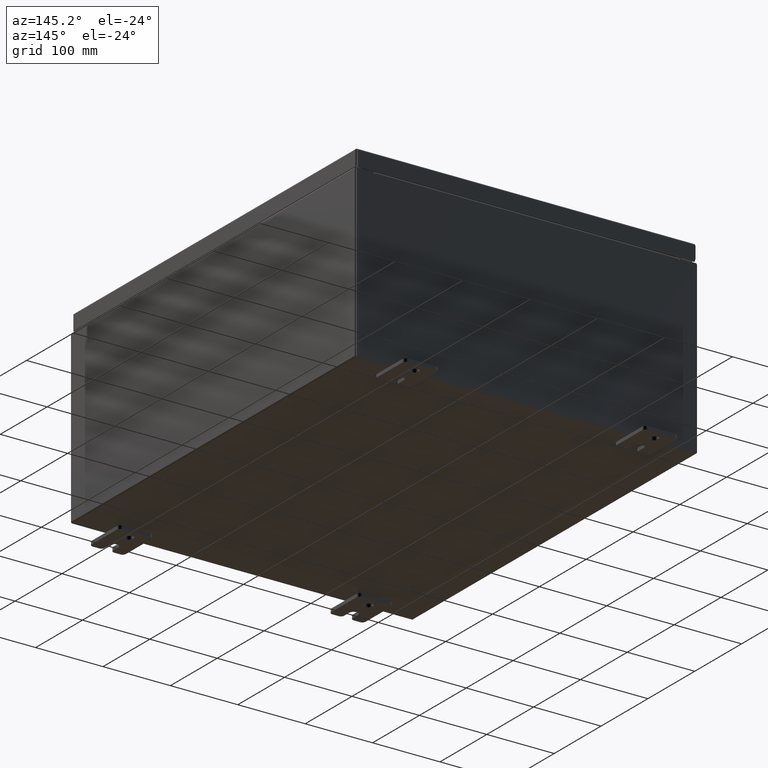
[diagram: clean part render]
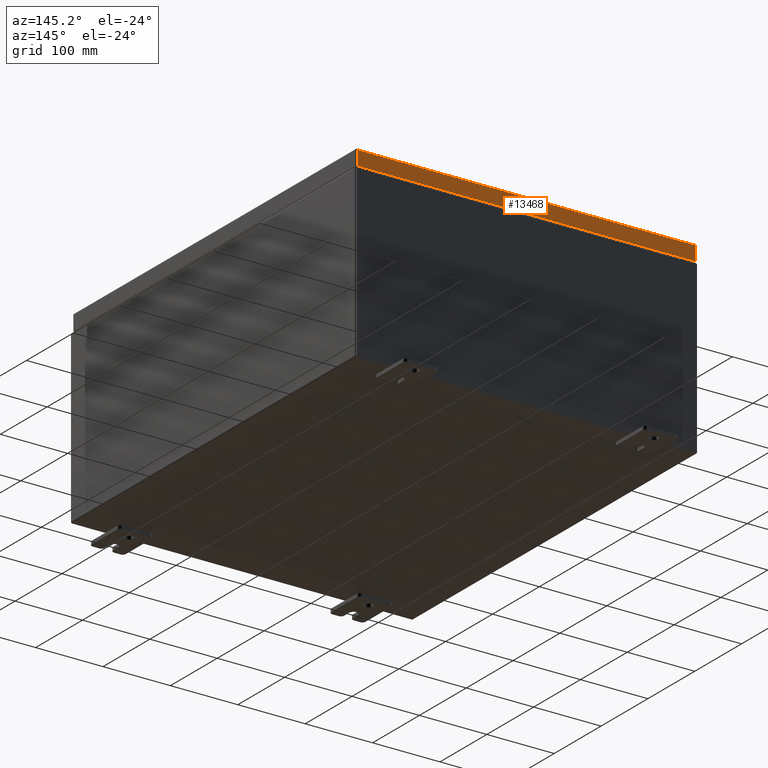
[diagram: same view with one face highlighted and labeled with its STEP entity id]
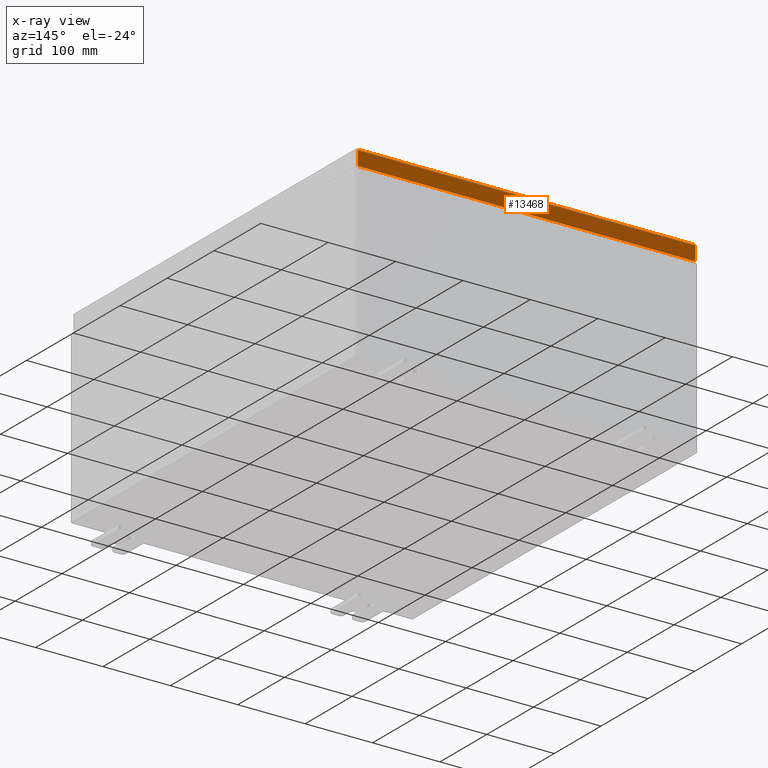
[diagram: x-ray of the same camera — body ghosted, the highlighted face saturated]
A machine part, auxiliary view. The second image highlights one B-rep face of the part: STEP entity #13468.
The next image is the same camera in x-ray: the body ghosted, the highlighted face saturated — about 0% of this face is hidden behind the body in this view.
In plain terms, the highlighted planar face has unit normal (0, -1, -0).
Its self-contained STEP definition (entity closure, byte-faithful):
#336 = LINE ( 'NONE', #26639, #37855 ) ;
#2458 = CARTESIAN_POINT ( 'NONE',  ( 9.848657864376265900, 11.93750000000000000, 3.049157650594627100E-014 ) ) ;
#3718 = EDGE_CURVE ( 'NONE', #51542, #47395, #39891, .T. ) ;
#7135 = LINE ( 'NONE', #31829, #41618 ) ;
#12238 = ORIENTED_EDGE ( 'NONE', *, *, #22449, .T. ) ;
#13468 = ADVANCED_FACE ( 'NONE', ( #16405 ), #19545, .F. ) ;
#13632 = ORIENTED_EDGE ( 'NONE', *, *, #3718, .F. ) ;
#16405 = FACE_OUTER_BOUND ( 'NONE', #35267, .T. ) ;
#16996 = DIRECTION ( 'NONE',  ( 0.0000000000000000000, 2.532419924601859000E-015, -1.000000000000000000 ) ) ;
#17223 = DIRECTION ( 'NONE',  ( 1.000000000000000000, -4.379057701015054300E-047, 1.237063242414006300E-016 ) ) ;
#19545 = PLANE ( 'NONE',  #40836 ) ;
#19674 = CARTESIAN_POINT ( 'NONE',  ( -9.848657864376273000, 11.93750000000000000, -0.08769999999999898700 ) ) ;
#22449 = EDGE_CURVE ( 'NONE', #51542, #49261, #24919, .T. ) ;
#23538 = CARTESIAN_POINT ( 'NONE',  ( 9.848657864376269400, 11.93750000000000000, -0.08769999999999791900 ) ) ;
#24464 = DIRECTION ( 'NONE',  ( 3.132763603081808500E-031, -1.000000000000000000, -2.532419924601859000E-015 ) ) ;
#24919 = LINE ( 'NONE', #2458, #49498 ) ;
#26639 = CARTESIAN_POINT ( 'NONE',  ( -9.848657864376271200, 11.93750000000000000, -0.07469999999999980800 ) ) ;
#26877 = VECTOR ( 'NONE', #53494, 39.37007874015748100 ) ;
#31651 = CARTESIAN_POINT ( 'NONE',  ( -9.937500000000001800, 11.93750000000000000, -0.08770000000000008300 ) ) ;
#31829 = CARTESIAN_POINT ( 'NONE',  ( -9.937500000000001800, 11.93750000000000200, -0.9377000000000023100 ) ) ;
#35267 = EDGE_LOOP ( 'NONE', ( #13632, #12238, #62055, #38221 ) ) ;
#37855 = VECTOR ( 'NONE', #60917, 39.37007874015748100 ) ;
#38221 = ORIENTED_EDGE ( 'NONE', *, *, #55070, .F. ) ;
#39891 = LINE ( 'NONE', #31651, #26877 ) ;
#40836 = AXIS2_PLACEMENT_3D ( 'NONE', #48949, #24464, #58798 ) ;
#41618 = VECTOR ( 'NONE', #17223, 39.37007874015748100 ) ;
#47395 = VERTEX_POINT ( 'NONE', #19674 ) ;
#48949 = CARTESIAN_POINT ( 'NONE',  ( -3.739736551178908500E-030, 11.93750000000000000, 3.049157650594627100E-014 ) ) ;
#49261 = VERTEX_POINT ( 'NONE', #54135 ) ;
#49498 = VECTOR ( 'NONE', #16996, 39.37007874015748100 ) ;
#51542 = VERTEX_POINT ( 'NONE', #23538 ) ;
#53494 = DIRECTION ( 'NONE',  ( -1.000000000000000000, -3.480848447868679500E-032, -1.099611771034672100E-016 ) ) ;
#54135 = CARTESIAN_POINT ( 'NONE',  ( 9.848657864376269400, 11.93750000000000200, -0.9376999999999997600 ) ) ;
#55070 = EDGE_CURVE ( 'NONE', #47395, #56664, #336, .T. ) ;
#56664 = VERTEX_POINT ( 'NONE', #63115 ) ;
#57922 = EDGE_CURVE ( 'NONE', #56664, #49261, #7135, .T. ) ;
#58798 = DIRECTION ( 'NONE',  ( 0.0000000000000000000, 2.532419924601859000E-015, -1.000000000000000000 ) ) ;
#60917 = DIRECTION ( 'NONE',  ( -0.0000000000000000000, 2.532419924601859000E-015, -1.000000000000000000 ) ) ;
#62055 = ORIENTED_EDGE ( 'NONE', *, *, #57922, .F. ) ;
#63115 = CARTESIAN_POINT ( 'NONE',  ( -9.848657864376271200, 11.93750000000000200, -0.9377000000000023100 ) ) ;